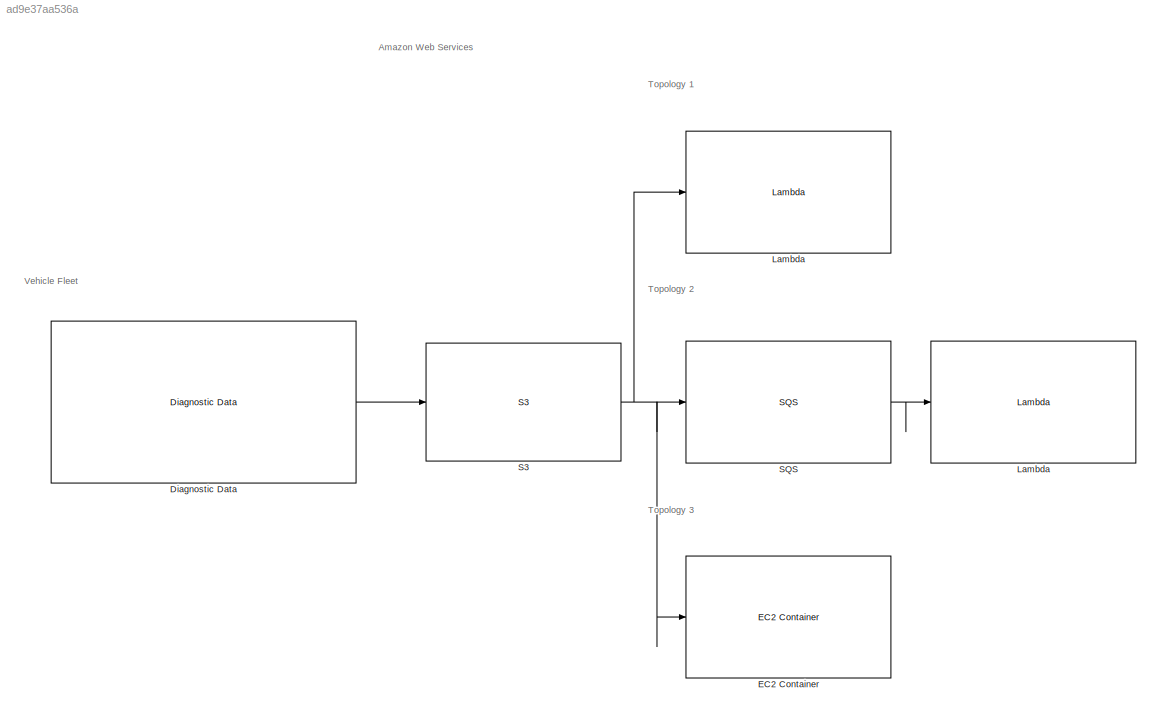
MODEL slx_ad9e37aa536a
KIND model
CONFIG AbsTol = auto
CONFIG EnableMultiTasking = off
CONFIG FixedStep = auto
CONFIG MaxStep = auto
CONFIG MinStep = auto
CONFIG RelTol = 1e-3
CONFIG SampleTimeConstraint = Unconstrained
CONFIG SolverName = VariableStepAuto
CONFIG StartTime = 0.0
CONFIG StopTime = 10
BLOCK [Reference] Diagnostic Data  REF=VACLib/Vehicle Components/Diagnostic Data
  LibrarySourceBlock = simulink/User-Defined\nFunctions/MATLAB Function
  SourceBlock = VACLib/Vehicle Components/Diagnostic Data
BLOCK [Reference] EC2 Container  REF=VACLib/AWS Components/EC2 Container
  LibrarySourceBlock = simulink/User-Defined\nFunctions/MATLAB Function
  SourceBlock = VACLib/AWS Components/EC2 Container
BLOCK [Reference] Lambda  REF=VACLib/AWS Components/Lambda
  LibrarySourceBlock = simulink/User-Defined\nFunctions/MATLAB Function
  SourceBlock = VACLib/AWS Components/Lambda
BLOCK [Reference] Lambda    REF=VACLib/AWS Components/Lambda
  LibrarySourceBlock = simulink/User-Defined\nFunctions/MATLAB Function
  SourceBlock = VACLib/AWS Components/Lambda
BLOCK [Reference] S3  REF=VACLib/AWS Components/S3
  LibrarySourceBlock = simulink/User-Defined\nFunctions/MATLAB Function
  SourceBlock = VACLib/AWS Components/S3
BLOCK [Reference] SQS  REF=VACLib/AWS Components/SQS
  LibrarySourceBlock = simulink/User-Defined\nFunctions/MATLAB Function
  SourceBlock = VACLib/AWS Components/SQS
ANNOTATION (root): Topology 1
ANNOTATION (root): Topology 2
ANNOTATION (root): Topology 3
ANNOTATION (root): Vehicle Fleet
ANNOTATION (root): Amazon Web Services
LINE Diagnostic Data:1 -> S3:1
NET S3:1 -> EC2 Container:1, Lambda  :1, SQS:1
LINE SQS:1 -> Lambda:1
note: NET lines group one-source signal fan-out (src -> all destinations, sorted); 1:1 wires keep LINE
